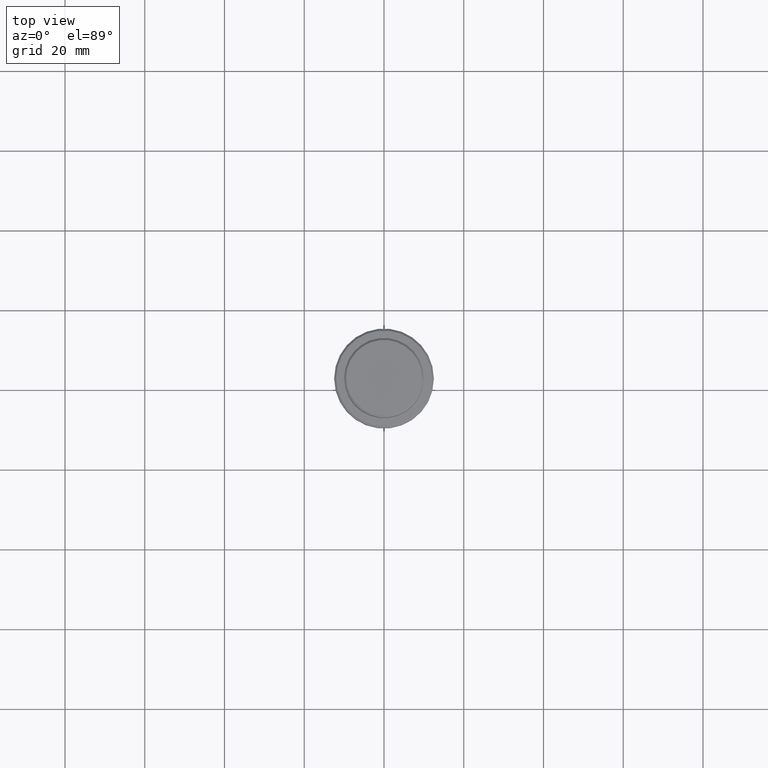
[diagram: clean part render]
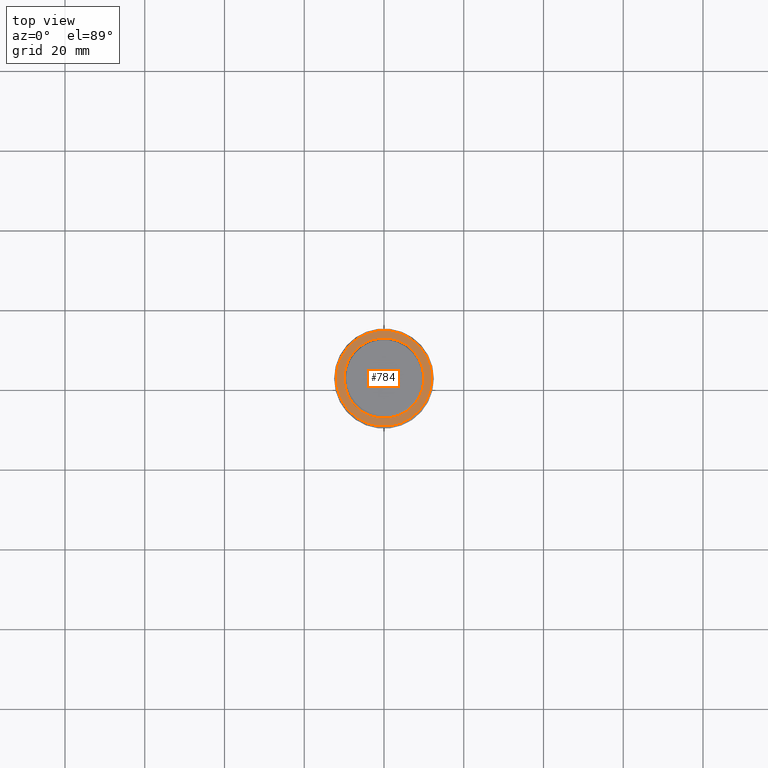
[diagram: same view with one face highlighted and labeled with its STEP entity id]
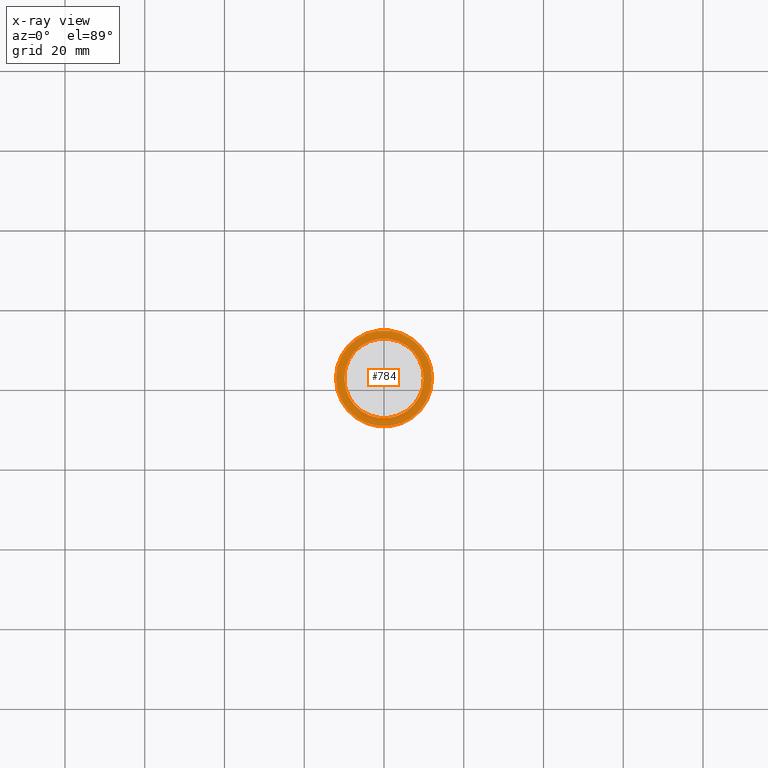
[diagram: x-ray of the same camera — body ghosted, the highlighted face saturated]
A machine part, top view. The second image highlights one B-rep face of the part: STEP entity #784.
The next image is the same camera in x-ray: the body ghosted, the highlighted face saturated — about 0% of this face is hidden behind the body in this view.
In plain terms, the highlighted planar face has unit normal (0, -0, 1).
Its self-contained STEP definition (entity closure, byte-faithful):
#27 = EDGE_CURVE ( 'NONE', #1316, #117, #1358, .T. ) ;
#117 = VERTEX_POINT ( 'NONE', #854 ) ;
#120 = EDGE_CURVE ( 'NONE', #122, #601, #279, .T. ) ;
#122 = VERTEX_POINT ( 'NONE', #1092 ) ;
#126 = DIRECTION ( 'NONE',  ( 1.000000000000000000, 0.000000000000000000, 0.000000000000000000 ) ) ;
#143 = CARTESIAN_POINT ( 'NONE',  ( 0.000000000000000000, 0.000000000000000000, -9.000000000000001776 ) ) ;
#161 = EDGE_CURVE ( 'NONE', #601, #122, #1340, .T. ) ;
#205 = DIRECTION ( 'NONE',  ( 1.000000000000000000, 0.000000000000000000, 0.000000000000000000 ) ) ;
#279 = CIRCLE ( 'NONE', #563, 9.999999999999994671 ) ;
#313 = DIRECTION ( 'NONE',  ( 0.000000000000000000, 0.000000000000000000, -1.000000000000000000 ) ) ;
#440 = FACE_OUTER_BOUND ( 'NONE', #1374, .T. ) ;
#474 = PLANE ( 'NONE',  #1036 ) ;
#477 = DIRECTION ( 'NONE',  ( 1.000000000000000000, 0.000000000000000000, 0.000000000000000000 ) ) ;
#563 = AXIS2_PLACEMENT_3D ( 'NONE', #1193, #313, #205 ) ;
#568 = CIRCLE ( 'NONE', #932, 12.00000000000001066 ) ;
#601 = VERTEX_POINT ( 'NONE', #634 ) ;
#634 = CARTESIAN_POINT ( 'NONE',  ( -9.999999999999994671, 1.224646799147352665E-15, -9.000000000000001776 ) ) ;
#686 = FACE_BOUND ( 'NONE', #1153, .T. ) ;
#705 = AXIS2_PLACEMENT_3D ( 'NONE', #1352, #1361, #1165 ) ;
#744 = DIRECTION ( 'NONE',  ( 1.000000000000000000, 0.000000000000000000, 0.000000000000000000 ) ) ;
#752 = EDGE_CURVE ( 'NONE', #117, #1316, #568, .T. ) ;
#784 = ADVANCED_FACE ( 'NONE', ( #440, #686 ), #474, .T. ) ;
#837 = ORIENTED_EDGE ( 'NONE', *, *, #752, .T. ) ;
#854 = CARTESIAN_POINT ( 'NONE',  ( 12.00000000000001066, 1.500192328955508326E-15, -9.000000000000001776 ) ) ;
#932 = AXIS2_PLACEMENT_3D ( 'NONE', #143, #1244, #477 ) ;
#943 = ORIENTED_EDGE ( 'NONE', *, *, #120, .T. ) ;
#1036 = AXIS2_PLACEMENT_3D ( 'NONE', #1349, #1140, #744 ) ;
#1092 = CARTESIAN_POINT ( 'NONE',  ( 9.999999999999994671, 0.000000000000000000, -9.000000000000001776 ) ) ;
#1116 = DIRECTION ( 'NONE',  ( -0.000000000000000000, -0.000000000000000000, 1.000000000000000000 ) ) ;
#1140 = DIRECTION ( 'NONE',  ( 0.000000000000000000, -0.000000000000000000, 1.000000000000000000 ) ) ;
#1153 = EDGE_LOOP ( 'NONE', ( #943, #1315 ) ) ;
#1165 = DIRECTION ( 'NONE',  ( 1.000000000000000000, 0.000000000000000000, 0.000000000000000000 ) ) ;
#1193 = CARTESIAN_POINT ( 'NONE',  ( 0.000000000000000000, 0.000000000000000000, -9.000000000000001776 ) ) ;
#1226 = CARTESIAN_POINT ( 'NONE',  ( 0.000000000000000000, 0.000000000000000000, -9.000000000000001776 ) ) ;
#1229 = AXIS2_PLACEMENT_3D ( 'NONE', #1226, #1116, #126 ) ;
#1244 = DIRECTION ( 'NONE',  ( -0.000000000000000000, -0.000000000000000000, 1.000000000000000000 ) ) ;
#1315 = ORIENTED_EDGE ( 'NONE', *, *, #161, .T. ) ;
#1316 = VERTEX_POINT ( 'NONE', #1401 ) ;
#1340 = CIRCLE ( 'NONE', #705, 9.999999999999994671 ) ;
#1349 = CARTESIAN_POINT ( 'NONE',  ( 0.000000000000000000, 9.499999999999994671, -9.000000000000001776 ) ) ;
#1352 = CARTESIAN_POINT ( 'NONE',  ( 0.000000000000000000, 0.000000000000000000, -9.000000000000001776 ) ) ;
#1358 = CIRCLE ( 'NONE', #1229, 12.00000000000001066 ) ;
#1361 = DIRECTION ( 'NONE',  ( 0.000000000000000000, 0.000000000000000000, -1.000000000000000000 ) ) ;
#1364 = ORIENTED_EDGE ( 'NONE', *, *, #27, .T. ) ;
#1374 = EDGE_LOOP ( 'NONE', ( #1364, #837 ) ) ;
#1401 = CARTESIAN_POINT ( 'NONE',  ( -12.00000000000001066, 0.000000000000000000, -9.000000000000001776 ) ) ;